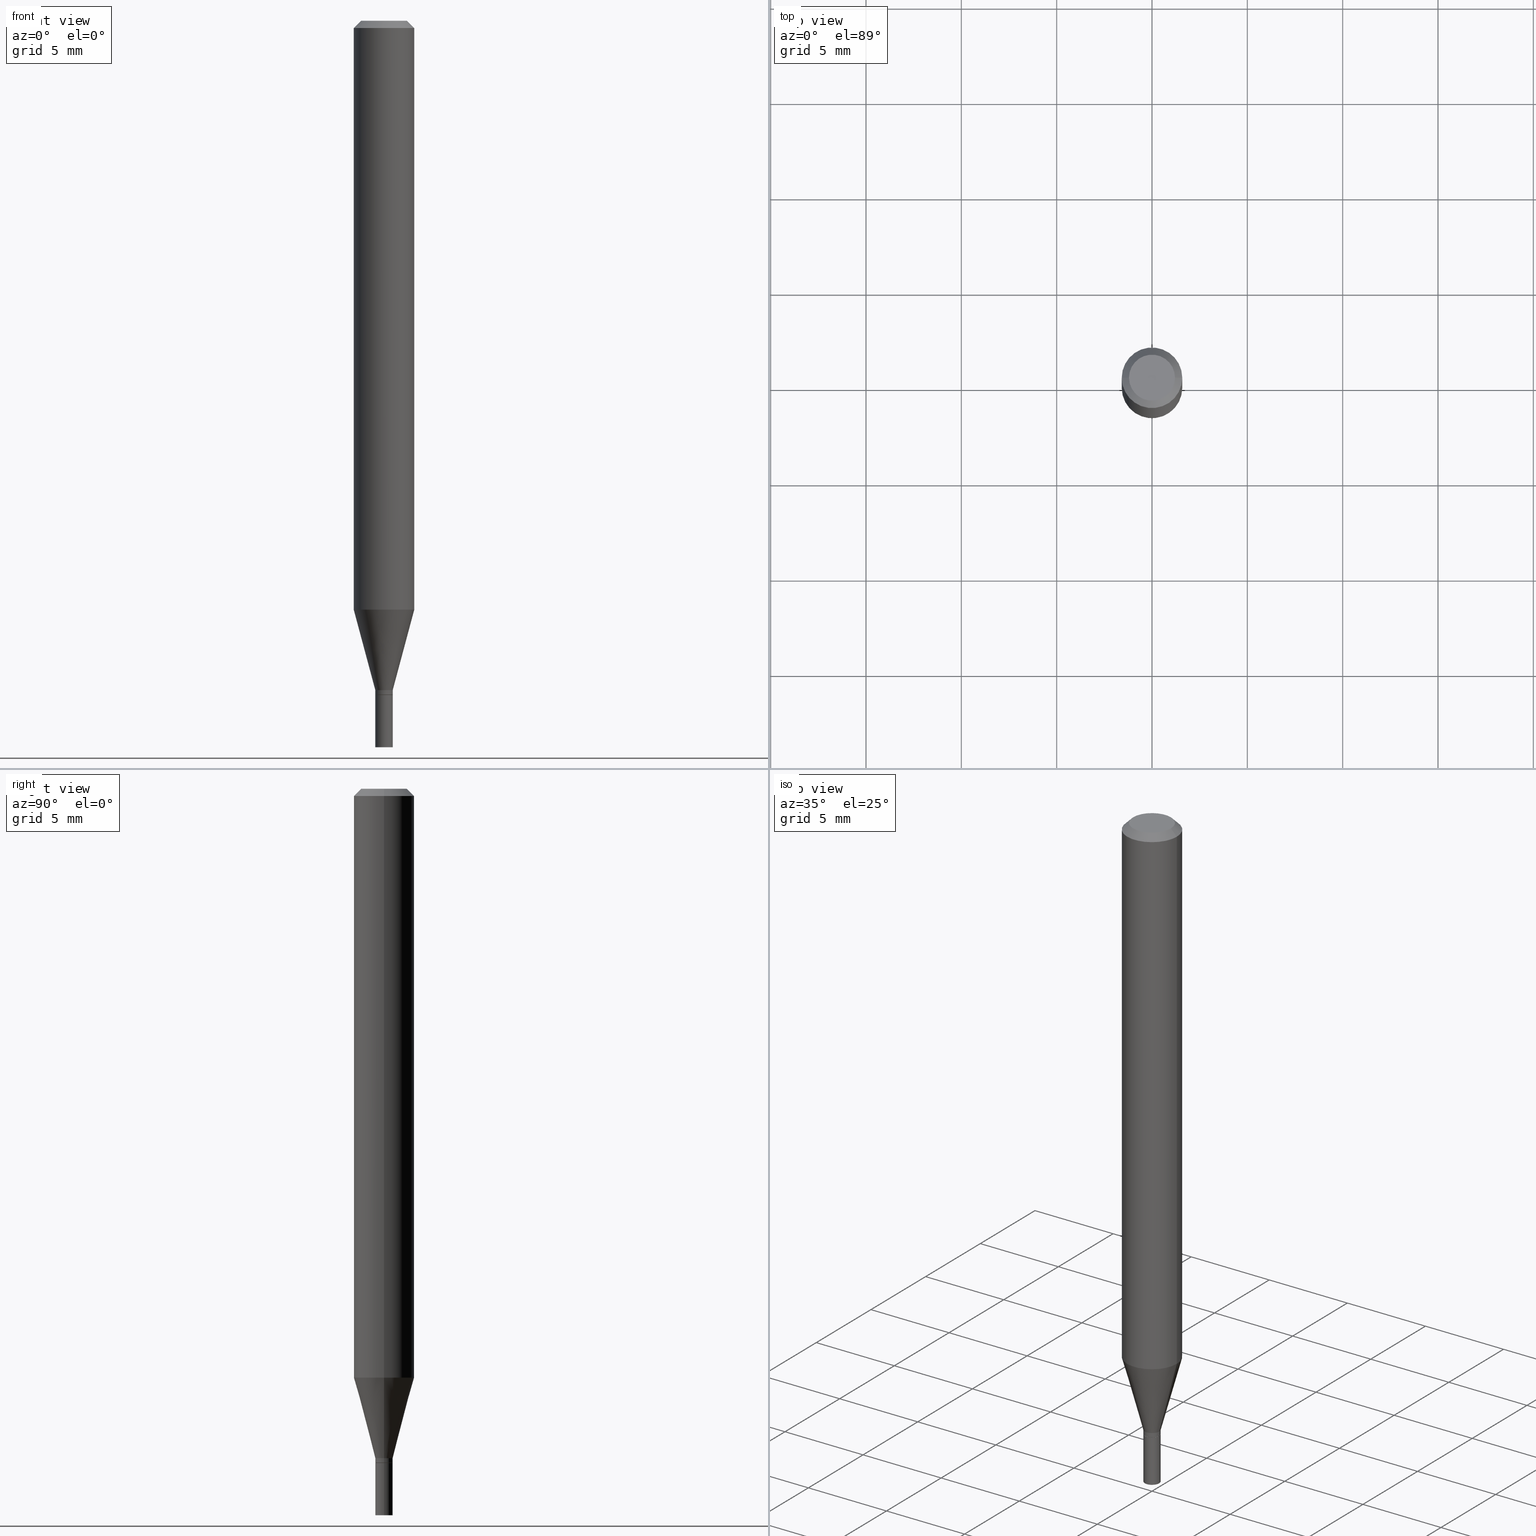
[diagram: canonical four-view strip — front | top / right | iso, engineering-drawing reading convention]
A machine part, canonical four-view strip (front | top / right | iso — engineering-drawing reading convention). The complete STEP part file that produces these views, byte-faithful:
ISO-10303-21;
HEADER;
FILE_DESCRIPTION (( 'STEP AP203' ),
    '1' );
FILE_NAME ('00842.STEP',
    '2024-03-19T22:41:56',
    ( '' ),
    ( '' ),
    'SwSTEP 2.0',
    'SolidWorks 2023',
    '' );
FILE_SCHEMA (( 'CONFIG_CONTROL_DESIGN' ));
ENDSEC;

DATA;
#1 = DIRECTION ( 'NONE',  ( 1.000000000000000000, -6.982962677686267499E-15, 4.852736867747366768E-29 ) ) ;
#2 = CARTESIAN_POINT ( 'NONE',  ( 0.000000000000000000, 0.000000000000000000, 0.000000000000000000 ) ) ;
#3 = EDGE_LOOP ( 'NONE', ( #256, #272, #241, #376 ) ) ;
#4 = CARTESIAN_POINT ( 'NONE',  ( 3.404092578209710223E-29, -4.860142023669658418E-15, -1.392000000000000126 ) ) ;
#5 = DIRECTION ( 'NONE',  ( -2.445468806185136877E-29, 3.491481338843145188E-15, 1.000000000000000000 ) ) ;
#6 = EDGE_CURVE ( 'NONE', #315, #239, #26, .T. ) ;
#7 = CIRCLE ( 'NONE', #267, 0.01749999999999999820 ) ;
#8 = APPROVAL_PERSON_ORGANIZATION ( #300, #354, #121 ) ;
#9 = DIRECTION ( 'NONE',  ( 2.438088387897960049E-29, -3.491481338843145188E-15, -1.000000000000000000 ) ) ;
#10 = ORIENTED_EDGE ( 'NONE', *, *, #293, .T. ) ;
#11 = PERSON_AND_ORGANIZATION ( #441, #372 ) ;
#12 = CALENDAR_DATE ( 2024, 19, 3 ) ;
#13 = ORIENTED_EDGE ( 'NONE', *, *, #99, .F. ) ;
#14 = CALENDAR_DATE ( 2024, 19, 3 ) ;
#15 = DIRECTION ( 'NONE',  ( 1.000000000000000000, -6.982962677686250144E-15, 0.000000000000000000 ) ) ;
#16 = ORIENTED_EDGE ( 'NONE', *, *, #150, .F. ) ;
#17 = EDGE_LOOP ( 'NONE', ( #24, #57, #135, #151 ) ) ;
#18 = CIRCLE ( 'NONE', #343, 0.01799999999999999864 ) ;
#19 = ORIENTED_EDGE ( 'NONE', *, *, #452, .T. ) ;
#20 = CALENDAR_DATE ( 2024, 19, 3 ) ;
#21 = LINE ( 'NONE', #234, #235 ) ;
#22 = EDGE_CURVE ( 'NONE', #134, #307, #421, .T. ) ;
#23 = EDGE_CURVE ( 'NONE', #413, #442, #236, .T. ) ;
#24 = ORIENTED_EDGE ( 'NONE', *, *, #435, .F. ) ;
#25 = DIRECTION ( 'NONE',  ( -2.445468806185136597E-29, 3.491481338843145583E-15, 1.000000000000000000 ) ) ;
#26 = LINE ( 'NONE', #302, #29 ) ;
#27 = ORIENTED_EDGE ( 'NONE', *, *, #46, .F. ) ;
#28 = AXIS2_PLACEMENT_3D ( 'NONE', #317, #173, #433 ) ;
#29 = VECTOR ( 'NONE', #266, 39.37007874015748143 ) ;
#30 = ADVANCED_FACE ( 'NONE', ( #426 ), #94, .T. ) ;
#31 = CYLINDRICAL_SURFACE ( 'NONE', #436, 0.01799999999999991884 ) ;
#32 = DIRECTION ( 'NONE',  ( -2.445468806185136597E-29, 3.491481338843145583E-15, 1.000000000000000000 ) ) ;
#33 = CARTESIAN_POINT ( 'NONE',  ( 1.278896122067429216E-44, -1.825924719719875646E-30, -5.229656247639779395E-16 ) ) ;
#34 = DIRECTION ( 'NONE',  ( 0.7071067811865598962, -7.319954787623298644E-15, -0.7071067811865351382 ) ) ;
#35 = CARTESIAN_POINT ( 'NONE',  ( 0.000000000000000000, 0.000000000000000000, 0.000000000000000000 ) ) ;
#36 = VECTOR ( 'NONE', #34, 39.37007874015748143 ) ;
#37 = PRODUCT_DEFINITION_FORMATION_WITH_SPECIFIED_SOURCE ( 'ANY', '', #208, .NOT_KNOWN. ) ;
#38 = APPLICATION_PROTOCOL_DEFINITION ( 'international standard', 'config_control_design', 1994, #392 ) ;
#39 = FACE_OUTER_BOUND ( 'NONE', #227, .T. ) ;
#40 = EDGE_LOOP ( 'NONE', ( #146, #294 ) ) ;
#41 = AXIS2_PLACEMENT_3D ( 'NONE', #247, #393, #76 ) ;
#42 = LOCAL_TIME ( 18, 41, 56.00000000000000000, #457 ) ;
#43 = CIRCLE ( 'NONE', #110, 0.01799999999999999864 ) ;
#44 = AXIS2_PLACEMENT_3D ( 'NONE', #2, #434, #88 ) ;
#45 = VERTEX_POINT ( 'NONE', #97 ) ;
#46 = EDGE_CURVE ( 'NONE', #120, #45, #167, .T. ) ;
#47 = DIRECTION ( 'NONE',  ( 0.000000000000000000, 0.000000000000000000, 1.000000000000000000 ) ) ;
#48 = DIRECTION ( 'NONE',  ( 1.000000000000000000, -6.982962677686255667E-15, 0.000000000000000000 ) ) ;
#49 = EDGE_CURVE ( 'NONE', #254, #442, #259, .T. ) ;
#50 = DATE_AND_TIME ( #379, #353 ) ;
#51 = CARTESIAN_POINT ( 'NONE',  ( -0.01749999999999999820, -4.733147817737530757E-15, -1.392000000000000126 ) ) ;
#52 = ORIENTED_EDGE ( 'NONE', *, *, #22, .F. ) ;
#53 = CC_DESIGN_PERSON_AND_ORGANIZATION_ASSIGNMENT ( #11, #340, ( #219 ) ) ;
#54 = DIRECTION ( 'NONE',  ( 1.000000000000000000, -6.982962677686279332E-15, 0.000000000000000000 ) ) ;
#55 = DIRECTION ( 'NONE',  ( -2.445468806185136597E-29, 3.491481338843145583E-15, 1.000000000000000000 ) ) ;
#56 = DIRECTION ( 'NONE',  ( 1.000000000000000000, -6.982962677686256455E-15, 0.000000000000000000 ) ) ;
#57 = ORIENTED_EDGE ( 'NONE', *, *, #223, .T. ) ;
#58 = PERSON_AND_ORGANIZATION ( #441, #372 ) ;
#59 =( GEOMETRIC_REPRESENTATION_CONTEXT ( 3 ) GLOBAL_UNCERTAINTY_ASSIGNED_CONTEXT ( ( #65 ) ) GLOBAL_UNIT_ASSIGNED_CONTEXT ( ( #118, #185, #152 ) ) REPRESENTATION_CONTEXT ( 'NONE', 'WORKASPACE' ) );
#60 = ADVANCED_FACE ( 'NONE', ( #277 ), #437, .T. ) ;
#61 = SECURITY_CLASSIFICATION ( '', '', #188 ) ;
#62 = CARTESIAN_POINT ( 'NONE',  ( -0.04749999999999999362, 3.578768372314202124E-16, -5.229656247639803061E-16 ) ) ;
#63 = ADVANCED_FACE ( 'NONE', ( #422 ), #265, .T. ) ;
#64 = DIRECTION ( 'NONE',  ( 1.000000000000000000, -6.982962677686270655E-15, 0.000000000000000000 ) ) ;
#65 = UNCERTAINTY_MEASURE_WITH_UNIT (LENGTH_MEASURE( 1.000000000000000082E-05 ), #118, 'distance_accuracy_value', 'NONE');
#66 = DIRECTION ( 'NONE',  ( -2.445468806185136597E-29, 3.491481338843145583E-15, 1.000000000000000000 ) ) ;
#67 = EDGE_LOOP ( 'NONE', ( #423, #10 ) ) ;
#68 = DIRECTION ( 'NONE',  ( -1.000000000000000000, 6.982962677686265922E-15, -4.876176775795935793E-29 ) ) ;
#69 = FACE_OUTER_BOUND ( 'NONE', #17, .T. ) ;
#70 = CIRCLE ( 'NONE', #333, 0.01799999999999999864 ) ;
#71 = DIRECTION ( 'NONE',  ( -2.445468806185136597E-29, 3.491481338843145583E-15, 1.000000000000000000 ) ) ;
#72 = AXIS2_PLACEMENT_3D ( 'NONE', #444, #47, #335 ) ;
#73 = AXIS2_PLACEMENT_3D ( 'NONE', #309, #128, #271 ) ;
#74 = EDGE_CURVE ( 'NONE', #254, #134, #145, .T. ) ;
#75 = FACE_OUTER_BOUND ( 'NONE', #184, .T. ) ;
#76 = DIRECTION ( 'NONE',  ( 1.000000000000000000, -6.982962677686256455E-15, 0.000000000000000000 ) ) ;
#77 = DIRECTION ( 'NONE',  ( -1.000000000000000000, 6.982962677686265922E-15, -4.876176775795935793E-29 ) ) ;
#78 = LOCAL_TIME ( 18, 41, 56.00000000000000000, #406 ) ;
#79 = EDGE_LOOP ( 'NONE', ( #124, #170, #117, #100 ) ) ;
#80 = LINE ( 'NONE', #154, #195 ) ;
#81 = DESIGN_CONTEXT ( 'detailed design', #275, 'design' ) ;
#82 = EDGE_CURVE ( 'NONE', #315, #113, #43, .T. ) ;
#83 = ORIENTED_EDGE ( 'NONE', *, *, #253, .T. ) ;
#84 = DIRECTION ( 'NONE',  ( 1.000000000000000000, -6.982962677686265922E-15, 4.876176775795935793E-29 ) ) ;
#85 = AXIS2_PLACEMENT_3D ( 'NONE', #4, #257, #84 ) ;
#86 = VECTOR ( 'NONE', #202, 39.37007874015748854 ) ;
#87 = DIRECTION ( 'NONE',  ( -2.445468806185136877E-29, 3.491481338843145188E-15, 1.000000000000000000 ) ) ;
#88 = DIRECTION ( 'NONE',  ( 1.000000000000000000, -6.982962677686266711E-15, 4.876176775795935232E-29 ) ) ;
#89 = ADVANCED_FACE ( 'NONE', ( #286 ), #389, .T. ) ;
#90 = AXIS2_PLACEMENT_3D ( 'NONE', #35, #200, #424 ) ;
#91 = ORIENTED_EDGE ( 'NONE', *, *, #287, .F. ) ;
#92 = VECTOR ( 'NONE', #5, 39.37007874015748143 ) ;
#93 = DIRECTION ( 'NONE',  ( -2.445468806185136597E-29, 3.491481338843145583E-15, 1.000000000000000000 ) ) ;
#94 = CYLINDRICAL_SURFACE ( 'NONE', #405, 0.06250000000000000000 ) ;
#95 = ORIENTED_EDGE ( 'NONE', *, *, #414, .T. ) ;
#96 = DIRECTION ( 'NONE',  ( -1.000000000000000000, 6.982962677686266711E-15, 0.000000000000000000 ) ) ;
#97 = CARTESIAN_POINT ( 'NONE',  ( -0.01799999999999992231, -4.730498590563419556E-15, -1.391500000000000181 ) ) ;
#98 = PERSON_AND_ORGANIZATION ( #441, #372 ) ;
#99 = EDGE_CURVE ( 'NONE', #375, #307, #323, .T. ) ;
#100 = ORIENTED_EDGE ( 'NONE', *, *, #253, .F. ) ;
#101 = LINE ( 'NONE', #198, #453 ) ;
#102 = CARTESIAN_POINT ( 'NONE',  ( 3.668203209277705088E-31, -5.237222008264718399E-17, -0.01499999999999999944 ) ) ;
#103 = CARTESIAN_POINT ( 'NONE',  ( 0.01799999999999999864, -5.362915336463071956E-15, -1.500000000000000222 ) ) ;
#104 = ADVANCED_FACE ( 'NONE', ( #69 ), #319, .T. ) ;
#105 = ORIENTED_EDGE ( 'NONE', *, *, #23, .F. ) ;
#106 = FACE_OUTER_BOUND ( 'NONE', #274, .T. ) ;
#107 = EDGE_CURVE ( 'NONE', #45, #193, #420, .T. ) ;
#108 = AXIS2_PLACEMENT_3D ( 'NONE', #463, #66, #1 ) ;
#109 = CYLINDRICAL_SURFACE ( 'NONE', #90, 0.06250000000000000000 ) ;
#110 = AXIS2_PLACEMENT_3D ( 'NONE', #279, #209, #356 ) ;
#111 = DIRECTION ( 'NONE',  ( 1.000000000000000000, -6.982962677686267499E-15, 4.852736867747366768E-29 ) ) ;
#112 = DIRECTION ( 'NONE',  ( 2.438088387897960049E-29, -3.491481338843145188E-15, -1.000000000000000000 ) ) ;
#113 = VERTEX_POINT ( 'NONE', #225 ) ;
#114 = APPROVAL ( #119, 'UNSPECIFIED' ) ;
#115 = CIRCLE ( 'NONE', #246, 0.01799999999999999864 ) ;
#116 = CLOSED_SHELL ( 'NONE', ( #346, #350, #104, #432 ) ) ;
#117 = ORIENTED_EDGE ( 'NONE', *, *, #452, .F. ) ;
#118 =( CONVERSION_BASED_UNIT ( 'INCH', #224 ) LENGTH_UNIT ( ) NAMED_UNIT ( #396 ) );
#119 = APPROVAL_STATUS ( 'not_yet_approved' ) ;
#120 = VERTEX_POINT ( 'NONE', #51 ) ;
#121 = APPROVAL_ROLE ( '' ) ;
#122 = VECTOR ( 'NONE', #314, 39.37007874015748143 ) ;
#123 = CARTESIAN_POINT ( 'NONE',  ( 0.01799999999999991884, -4.950920538479579759E-15, -1.382000000000000117 ) ) ;
#124 = ORIENTED_EDGE ( 'NONE', *, *, #438, .T. ) ;
#125 = DATE_AND_TIME ( #12, #460 ) ;
#126 = ORIENTED_EDGE ( 'NONE', *, *, #287, .T. ) ;
#127 = VERTEX_POINT ( 'NONE', #326 ) ;
#128 = DIRECTION ( 'NONE',  ( -2.445468806185136597E-29, 3.491481338843145583E-15, 1.000000000000000000 ) ) ;
#129 = ORIENTED_EDGE ( 'NONE', *, *, #136, .T. ) ;
#130 = EDGE_CURVE ( 'NONE', #239, #248, #70, .T. ) ;
#131 = CARTESIAN_POINT ( 'NONE',  ( -0.01799999999999991884, 1.278976924368174568E-16, -8.854083162458790652E-31 ) ) ;
#132 = DIRECTION ( 'NONE',  ( 1.000000000000000000, -6.982962677686250144E-15, 0.000000000000000000 ) ) ;
#133 = DIRECTION ( 'NONE',  ( -2.445468806185136597E-29, 3.491481338843145583E-15, 1.000000000000000000 ) ) ;
#134 = VERTEX_POINT ( 'NONE', #192 ) ;
#135 = ORIENTED_EDGE ( 'NONE', *, *, #6, .T. ) ;
#136 = EDGE_CURVE ( 'NONE', #120, #127, #7, .T. ) ;
#137 = CARTESIAN_POINT ( 'NONE',  ( 3.668203209277705088E-31, -5.237222008264718399E-17, -0.01499999999999999944 ) ) ;
#138 = APPROVAL ( #331, 'UNSPECIFIED' ) ;
#139 = PRODUCT_DEFINITION_SHAPE ( 'NONE', 'NONE',  #219 ) ;
#140 = CARTESIAN_POINT ( 'NONE',  ( 0.01749999999999999820, -4.982343870529167612E-15, -1.392000000000000126 ) ) ;
#141 = CARTESIAN_POINT ( 'NONE',  ( 0.000000000000000000, 0.000000000000000000, 0.000000000000000000 ) ) ;
#142 = ADVANCED_FACE ( 'NONE', ( #304 ), #329, .T. ) ;
#143 = ORIENTED_EDGE ( 'NONE', *, *, #400, .F. ) ;
#144 = CARTESIAN_POINT ( 'NONE',  ( 0.04749999999999999362, -4.035134999187587991E-16, -5.229656247639753758E-16 ) ) ;
#145 = LINE ( 'NONE', #386, #92 ) ;
#146 = ORIENTED_EDGE ( 'NONE', *, *, #438, .F. ) ;
#147 = FACE_OUTER_BOUND ( 'NONE', #365, .T. ) ;
#148 = VECTOR ( 'NONE', #210, 39.37007874015748854 ) ;
#149 = DIRECTION ( 'NONE',  ( -2.445468806185136597E-29, 3.491481338843145583E-15, 1.000000000000000000 ) ) ;
#150 = EDGE_CURVE ( 'NONE', #413, #456, #155, .T. ) ;
#151 = ORIENTED_EDGE ( 'NONE', *, *, #465, .F. ) ;
#152 =( NAMED_UNIT ( * ) SI_UNIT ( $, .STERADIAN. ) SOLID_ANGLE_UNIT ( ) );
#153 = CC_DESIGN_DATE_AND_TIME_ASSIGNMENT ( #374, #159, ( #61 ) ) ;
#154 = CARTESIAN_POINT ( 'NONE',  ( -0.01799999999999999864, 1.278976924368180238E-16, -8.854083162458829188E-31 ) ) ;
#155 = CIRCLE ( 'NONE', #446, 0.01799999999999991884 ) ;
#156 = PERSON_AND_ORGANIZATION_ROLE ( 'creator' ) ;
#157 = ORIENTED_EDGE ( 'NONE', *, *, #130, .F. ) ;
#158 = EDGE_LOOP ( 'NONE', ( #398, #334, #321, #105 ) ) ;
#159 = DATE_TIME_ROLE ( 'classification_date' ) ;
#160 = ADVANCED_FACE ( 'NONE', ( #163 ), #320, .T. ) ;
#161 = CIRCLE ( 'NONE', #222, 0.01799999999999992231 ) ;
#162 = ORIENTED_EDGE ( 'NONE', *, *, #49, .F. ) ;
#163 = FACE_OUTER_BOUND ( 'NONE', #158, .T. ) ;
#164 = CARTESIAN_POINT ( 'NONE',  ( 3.668203209277705088E-31, -5.237222008264718399E-17, -0.01499999999999999944 ) ) ;
#165 = DATE_TIME_ROLE ( 'creation_date' ) ;
#166 = LINE ( 'NONE', #131, #289 ) ;
#167 = LINE ( 'NONE', #229, #197 ) ;
#168 = EDGE_CURVE ( 'NONE', #442, #307, #21, .T. ) ;
#169 = CARTESIAN_POINT ( 'NONE',  ( -0.06250000000000001388, -3.801285834545430586E-15, -1.215923739063185183 ) ) ;
#170 = ORIENTED_EDGE ( 'NONE', *, *, #46, .T. ) ;
#171 = VECTOR ( 'NONE', #176, 39.37007874015748143 ) ;
#172 = FACE_OUTER_BOUND ( 'NONE', #290, .T. ) ;
#173 = DIRECTION ( 'NONE',  ( -2.438088387897960049E-29, 3.491481338843145188E-15, 1.000000000000000000 ) ) ;
#174 = VERTEX_POINT ( 'NONE', #62 ) ;
#175 = CIRCLE ( 'NONE', #108, 0.04749999999999999362 ) ;
#176 = DIRECTION ( 'NONE',  ( -2.445468806185136877E-29, 3.491481338843145188E-15, 1.000000000000000000 ) ) ;
#177 = MECHANICAL_CONTEXT ( 'NONE', #392, 'mechanical' ) ;
#178 = DIRECTION ( 'NONE',  ( 1.000000000000000000, -6.982962677686279332E-15, 0.000000000000000000 ) ) ;
#179 = EDGE_CURVE ( 'NONE', #174, #134, #101, .T. ) ;
#180 = PERSON_AND_ORGANIZATION ( #441, #372 ) ;
#181 = AXIS2_PLACEMENT_3D ( 'NONE', #322, #112, #68 ) ;
#182 = AXIS2_PLACEMENT_3D ( 'NONE', #232, #458, #64 ) ;
#183 = AXIS2_PLACEMENT_3D ( 'NONE', #268, #412, #96 ) ;
#184 = EDGE_LOOP ( 'NONE', ( #411, #324, #157, #443 ) ) ;
#185 =( NAMED_UNIT ( * ) PLANE_ANGLE_UNIT ( ) SI_UNIT ( $, .RADIAN. ) );
#186 = CYLINDRICAL_SURFACE ( 'NONE', #429, 0.01799999999999991884 ) ;
#187 = EDGE_CURVE ( 'NONE', #45, #456, #166, .T. ) ;
#188 = SECURITY_CLASSIFICATION_LEVEL ( 'unclassified' ) ;
#189 = DIRECTION ( 'NONE',  ( -2.445468806185136597E-29, 3.491481338843145583E-15, 1.000000000000000000 ) ) ;
#190 = APPROVAL_PERSON_ORGANIZATION ( #180, #138, #447 ) ;
#191 = ORIENTED_EDGE ( 'NONE', *, *, #223, .F. ) ;
#192 = CARTESIAN_POINT ( 'NONE',  ( -0.06250000000000000000, -1.704784422389007524E-15, -0.01499999999999999944 ) ) ;
#193 = VERTEX_POINT ( 'NONE', #238 ) ;
#194 = EDGE_LOOP ( 'NONE', ( #13, #143, #196, #416 ) ) ;
#195 = VECTOR ( 'NONE', #87, 39.37007874015748143 ) ;
#196 = ORIENTED_EDGE ( 'NONE', *, *, #179, .T. ) ;
#197 = VECTOR ( 'NONE', #349, 39.37007874015748143 ) ;
#198 = CARTESIAN_POINT ( 'NONE',  ( -0.06250000000000000000, 3.840629472727444916E-16, -0.01499999999999999944 ) ) ;
#199 = EDGE_LOOP ( 'NONE', ( #394, #313, #262, #312 ) ) ;
#200 = DIRECTION ( 'NONE',  ( -2.445468806185136597E-29, 3.491481338843145583E-15, 1.000000000000000000 ) ) ;
#201 = ADVANCED_FACE ( 'NONE', ( #276 ), #109, .T. ) ;
#202 = DIRECTION ( 'NONE',  ( 0.2588190451025211836, 1.565188264969622559E-15, 0.9659258262890679791 ) ) ;
#203 = CYLINDRICAL_SURFACE ( 'NONE', #352, 0.01799999999999999864 ) ;
#204 = CIRCLE ( 'NONE', #41, 0.01799999999999991884 ) ;
#205 = AXIS2_PLACEMENT_3D ( 'NONE', #378, #347, #132 ) ;
#206 = CARTESIAN_POINT ( 'NONE',  ( 3.404092578209710223E-29, -4.860142023669658418E-15, -1.392000000000000126 ) ) ;
#207 = AXIS2_PLACEMENT_3D ( 'NONE', #206, #428, #464 ) ;
#208 = PRODUCT ( '00842', '00842', '', ( #177 ) ) ;
#209 = DIRECTION ( 'NONE',  ( -2.445468806185136597E-29, 3.491481338843145583E-15, 1.000000000000000000 ) ) ;
#210 = DIRECTION ( 'NONE',  ( -0.2588190451025211836, 5.211531920934547886E-15, 0.9659258262890679791 ) ) ;
#211 = FACE_OUTER_BOUND ( 'NONE', #40, .T. ) ;
#212 = CARTESIAN_POINT ( 'NONE',  ( 3.379637890147859239E-29, -4.825227210281227557E-15, -1.382000000000000117 ) ) ;
#213 = ORIENTED_EDGE ( 'NONE', *, *, #107, .T. ) ;
#214 = CIRCLE ( 'NONE', #371, 0.06250000000000000000 ) ;
#215 = CARTESIAN_POINT ( 'NONE',  ( 1.256933281983868125E-16, 0.01799999999999513794, -1.392000000000000126 ) ) ;
#216 = DIRECTION ( 'NONE',  ( 1.000000000000000000, -6.982962677686256455E-15, 0.000000000000000000 ) ) ;
#217 = CARTESIAN_POINT ( 'NONE',  ( 0.000000000000000000, 0.000000000000000000, 0.000000000000000000 ) ) ;
#218 = ADVANCED_FACE ( 'NONE', ( #278 ), #380, .T. ) ;
#219 = PRODUCT_DEFINITION ( 'UNKNOWN', '', #37, #81 ) ;
#220 = DIRECTION ( 'NONE',  ( 1.000000000000000000, -6.982962677686250144E-15, 0.000000000000000000 ) ) ;
#221 = DIRECTION ( 'NONE',  ( -2.445468806185136597E-29, 3.491481338843145583E-15, 1.000000000000000000 ) ) ;
#222 = AXIS2_PLACEMENT_3D ( 'NONE', #440, #367, #288 ) ;
#223 = EDGE_CURVE ( 'NONE', #113, #315, #115, .T. ) ;
#224 = LENGTH_MEASURE_WITH_UNIT ( LENGTH_MEASURE( 0.02539999999999999897 ), #399 );
#225 = CARTESIAN_POINT ( 'NONE',  ( -0.01799999999999999864, -4.920784323530369756E-15, -1.500000000000000222 ) ) ;
#226 = MANIFOLD_SOLID_BREP ( 'Body-Move/Copy2[2]', #228 ) ;
#227 = EDGE_LOOP ( 'NONE', ( #366, #342 ) ) ;
#228 = CLOSED_SHELL ( 'NONE', ( #445, #218, #142, #30, #160, #89, #201, #63, #336, #425, #60, #332 ) ) ;
#229 = CARTESIAN_POINT ( 'NONE',  ( -0.01749999999999999820, -4.735797044911641169E-15, -1.392000000000000126 ) ) ;
#230 = ORIENTED_EDGE ( 'NONE', *, *, #168, .T. ) ;
#231 = CC_DESIGN_PERSON_AND_ORGANIZATION_ASSIGNMENT ( #233, #448, ( #37 ) ) ;
#232 = CARTESIAN_POINT ( 'NONE',  ( 2.973503574579014958E-29, -4.245375044395493202E-15, -1.215923739063185183 ) ) ;
#233 = PERSON_AND_ORGANIZATION ( #441, #372 ) ;
#234 = CARTESIAN_POINT ( 'NONE',  ( 0.06250000000000000000, -4.364351673553916694E-16, 3.047610484872459871E-30 ) ) ;
#235 = VECTOR ( 'NONE', #382, 39.37007874015748143 ) ;
#236 = LINE ( 'NONE', #123, #86 ) ;
#237 = APPROVAL_PERSON_ORGANIZATION ( #303, #114, #408 ) ;
#238 = CARTESIAN_POINT ( 'NONE',  ( 0.01799999999999992231, -4.984089611198589115E-15, -1.391500000000000181 ) ) ;
#239 = VERTEX_POINT ( 'NONE', #249 ) ;
#240 = DIRECTION ( 'NONE',  ( -2.445468806185136597E-29, 3.491481338843145583E-15, 1.000000000000000000 ) ) ;
#241 = ORIENTED_EDGE ( 'NONE', *, *, #273, .T. ) ;
#242 = LINE ( 'NONE', #284, #148 ) ;
#243 = CIRCLE ( 'NONE', #305, 0.01749999999999999820 ) ;
#244 = AXIS2_PLACEMENT_3D ( 'NONE', #102, #461, #327 ) ;
#245 = LINE ( 'NONE', #466, #171 ) ;
#246 = AXIS2_PLACEMENT_3D ( 'NONE', #348, #25, #355 ) ;
#247 = CARTESIAN_POINT ( 'NONE',  ( 3.379637890147859239E-29, -4.825227210281227557E-15, -1.382000000000000117 ) ) ;
#248 = VERTEX_POINT ( 'NONE', #318 ) ;
#249 = CARTESIAN_POINT ( 'NONE',  ( 0.01799999999999999864, -4.985835351868011408E-15, -1.392000000000000126 ) ) ;
#250 = CC_DESIGN_SECURITY_CLASSIFICATION ( #61, ( #37 ) ) ;
#251 = CARTESIAN_POINT ( 'NONE',  ( 3.404092578209710223E-29, -4.860142023669658418E-15, -1.392000000000000126 ) ) ;
#252 = CARTESIAN_POINT ( 'NONE',  ( 3.404092578209710223E-29, -4.860142023669658418E-15, -1.392000000000000126 ) ) ;
#253 = EDGE_CURVE ( 'NONE', #127, #193, #280, .T. ) ;
#254 = VERTEX_POINT ( 'NONE', #169 ) ;
#255 = PERSON_AND_ORGANIZATION_ROLE ( 'design_owner' ) ;
#256 = ORIENTED_EDGE ( 'NONE', *, *, #293, .F. ) ;
#257 = DIRECTION ( 'NONE',  ( -2.438088387897960049E-29, 3.491481338843145188E-15, 1.000000000000000000 ) ) ;
#258 = APPLICATION_PROTOCOL_DEFINITION ( 'international standard', 'config_control_design', 1994, #275 ) ;
#259 = CIRCLE ( 'NONE', #182, 0.06250000000000000000 ) ;
#260 = DATE_AND_TIME ( #14, #42 ) ;
#261 = SHAPE_DEFINITION_REPRESENTATION ( #139, #298 ) ;
#262 = ORIENTED_EDGE ( 'NONE', *, *, #273, .F. ) ;
#263 = APPROVAL_DATE_TIME ( #415, #354 ) ;
#264 = CIRCLE ( 'NONE', #388, 0.06250000000000000000 ) ;
#265 = CONICAL_SURFACE ( 'NONE', #244, 0.06250000000000000000, 0.7853981633974658205 ) ;
#266 = DIRECTION ( 'NONE',  ( -2.445468806185136877E-29, 3.491481338843145188E-15, 1.000000000000000000 ) ) ;
#267 = AXIS2_PLACEMENT_3D ( 'NONE', #341, #455, #15 ) ;
#268 = CARTESIAN_POINT ( 'NONE',  ( 3.668203209277705088E-31, -5.237222008264718399E-17, -0.01499999999999999944 ) ) ;
#269 = CARTESIAN_POINT ( 'NONE',  ( 0.000000000000000000, 0.000000000000000000, 0.000000000000000000 ) ) ;
#270 = APPROVAL_STATUS ( 'not_yet_approved' ) ;
#271 = DIRECTION ( 'NONE',  ( 1.000000000000000000, -6.982962677686256455E-15, 0.000000000000000000 ) ) ;
#272 = ORIENTED_EDGE ( 'NONE', *, *, #99, .T. ) ;
#273 = EDGE_CURVE ( 'NONE', #307, #134, #214, .T. ) ;
#274 = EDGE_LOOP ( 'NONE', ( #328, #191 ) ) ;
#275 = APPLICATION_CONTEXT ( 'configuration controlled 3d designs of mechanical parts and assemblies' ) ;
#276 = FACE_OUTER_BOUND ( 'NONE', #310, .T. ) ;
#277 = FACE_OUTER_BOUND ( 'NONE', #383, .T. ) ;
#278 = FACE_OUTER_BOUND ( 'NONE', #79, .T. ) ;
#279 = CARTESIAN_POINT ( 'NONE',  ( 3.668203209277704895E-29, -5.237222008264718177E-15, -1.500000000000000222 ) ) ;
#280 = LINE ( 'NONE', #140, #122 ) ;
#281 = CIRCLE ( 'NONE', #409, 0.04749999999999999362 ) ;
#282 = CC_DESIGN_APPROVAL ( #138, ( #219 ) ) ;
#283 = AXIS2_PLACEMENT_3D ( 'NONE', #164, #55, #454 ) ;
#284 = CARTESIAN_POINT ( 'NONE',  ( -0.01799999999999991884, -4.697329517844410199E-15, -1.382000000000000117 ) ) ;
#285 = CARTESIAN_POINT ( 'NONE',  ( 0.01799999999999991884, -4.950920538479579759E-15, -1.382000000000000117 ) ) ;
#286 = FACE_OUTER_BOUND ( 'NONE', #407, .T. ) ;
#287 = EDGE_CURVE ( 'NONE', #193, #413, #245, .T. ) ;
#288 = DIRECTION ( 'NONE',  ( 1.000000000000000000, -6.982962677686255667E-15, 0.000000000000000000 ) ) ;
#289 = VECTOR ( 'NONE', #419, 39.37007874015748143 ) ;
#290 = EDGE_LOOP ( 'NONE', ( #306, #213, #126, #449 ) ) ;
#291 = PERSON_AND_ORGANIZATION ( #441, #372 ) ;
#292 = CARTESIAN_POINT ( 'NONE',  ( 0.06250000000000001388, -4.681810211750884871E-15, -1.215923739063185183 ) ) ;
#293 = EDGE_CURVE ( 'NONE', #375, #174, #175, .T. ) ;
#294 = ORIENTED_EDGE ( 'NONE', *, *, #136, .F. ) ;
#295 = DIRECTION ( 'NONE',  ( 1.000000000000000000, -6.982962677686270655E-15, 0.000000000000000000 ) ) ;
#296 = AXIS2_PLACEMENT_3D ( 'NONE', #299, #364, #48 ) ;
#297 = LOCAL_TIME ( 18, 41, 56.00000000000000000, #338 ) ;
#298 = ADVANCED_BREP_SHAPE_REPRESENTATION ( '00842', ( #390, #226, #72 ), #59 ) ;
#299 = CARTESIAN_POINT ( 'NONE',  ( 3.402869843806617422E-29, -4.858396283000238492E-15, -1.391500000000000181 ) ) ;
#300 = PERSON_AND_ORGANIZATION ( #441, #372 ) ;
#301 = APPROVAL_DATE_TIME ( #125, #138 ) ;
#302 = CARTESIAN_POINT ( 'NONE',  ( 0.01799999999999999864, -1.256933281983527929E-16, 8.777118196432682816E-31 ) ) ;
#303 = PERSON_AND_ORGANIZATION ( #441, #372 ) ;
#304 = FACE_OUTER_BOUND ( 'NONE', #3, .T. ) ;
#305 = AXIS2_PLACEMENT_3D ( 'NONE', #402, #149, #220 ) ;
#306 = ORIENTED_EDGE ( 'NONE', *, *, #187, .F. ) ;
#307 = VERTEX_POINT ( 'NONE', #387 ) ;
#308 = AXIS2_PLACEMENT_3D ( 'NONE', #212, #32, #216 ) ;
#309 = CARTESIAN_POINT ( 'NONE',  ( 3.379637890147859239E-29, -4.825227210281227557E-15, -1.382000000000000117 ) ) ;
#310 = EDGE_LOOP ( 'NONE', ( #339, #417, #230, #52 ) ) ;
#311 = PERSON_AND_ORGANIZATION_ROLE ( 'classification_officer' ) ;
#312 = ORIENTED_EDGE ( 'NONE', *, *, #168, .F. ) ;
#313 = ORIENTED_EDGE ( 'NONE', *, *, #74, .T. ) ;
#314 = DIRECTION ( 'NONE',  ( 0.7071067811865642261, -2.468850131082431399E-15, 0.7071067811865309194 ) ) ;
#315 = VERTEX_POINT ( 'NONE', #103 ) ;
#316 = DIRECTION ( 'NONE',  ( 1.000000000000000000, -6.982962677686265922E-15, 4.876176775795935232E-29 ) ) ;
#317 = CARTESIAN_POINT ( 'NONE',  ( 3.584916967085606921E-29, -5.356492647442320375E-15, -1.500000000000000222 ) ) ;
#318 = CARTESIAN_POINT ( 'NONE',  ( -0.01799999999999999864, -4.920784323530369756E-15, -1.392000000000000126 ) ) ;
#319 = CYLINDRICAL_SURFACE ( 'NONE', #44, 0.01799999999999999864 ) ;
#320 = CONICAL_SURFACE ( 'NONE', #73, 0.01799999999999991884, 0.2617993877991499074 ) ;
#321 = ORIENTED_EDGE ( 'NONE', *, *, #430, .F. ) ;
#322 = CARTESIAN_POINT ( 'NONE',  ( 3.316907271900976096E-16, 0.04749999999999999362, -4.273281759770383169E-16 ) ) ;
#323 = LINE ( 'NONE', #362, #36 ) ;
#324 = ORIENTED_EDGE ( 'NONE', *, *, #435, .T. ) ;
#325 = CARTESIAN_POINT ( 'NONE',  ( 2.973503574579014958E-29, -4.245375044395493202E-15, -1.215923739063185183 ) ) ;
#326 = CARTESIAN_POINT ( 'NONE',  ( 0.01749999999999999820, -4.982343870529167612E-15, -1.392000000000000126 ) ) ;
#327 = DIRECTION ( 'NONE',  ( -1.000000000000000000, 6.982962677686266711E-15, 0.000000000000000000 ) ) ;
#328 = ORIENTED_EDGE ( 'NONE', *, *, #82, .F. ) ;
#329 = CONICAL_SURFACE ( 'NONE', #183, 0.06250000000000000000, 0.7853981633974658205 ) ;
#330 = ORIENTED_EDGE ( 'NONE', *, *, #23, .T. ) ;
#331 = APPROVAL_STATUS ( 'not_yet_approved' ) ;
#332 = ADVANCED_FACE ( 'NONE', ( #172 ), #31, .T. ) ;
#333 = AXIS2_PLACEMENT_3D ( 'NONE', #252, #93, #54 ) ;
#334 = ORIENTED_EDGE ( 'NONE', *, *, #370, .T. ) ;
#335 = DIRECTION ( 'NONE',  ( 1.000000000000000000, 0.000000000000000000, 0.000000000000000000 ) ) ;
#336 = ADVANCED_FACE ( 'NONE', ( #391 ), #357, .F. ) ;
#337 = APPROVAL_DATE_TIME ( #50, #114 ) ;
#338 = COORDINATED_UNIVERSAL_TIME_OFFSET ( 5, 0, .BEHIND. ) ;
#339 = ORIENTED_EDGE ( 'NONE', *, *, #74, .F. ) ;
#340 = PERSON_AND_ORGANIZATION_ROLE ( 'creator' ) ;
#341 = CARTESIAN_POINT ( 'NONE',  ( 3.404092578209710223E-29, -4.860142023669658418E-15, -1.392000000000000126 ) ) ;
#342 = ORIENTED_EDGE ( 'NONE', *, *, #465, .T. ) ;
#343 = AXIS2_PLACEMENT_3D ( 'NONE', #251, #363, #178 ) ;
#344 = ORIENTED_EDGE ( 'NONE', *, *, #370, .F. ) ;
#345 = DIRECTION ( 'NONE',  ( -0.7071067811865598962, 2.468850131082386434E-15, -0.7071067811865351382 ) ) ;
#346 = ADVANCED_FACE ( 'NONE', ( #75 ), #203, .T. ) ;
#347 = DIRECTION ( 'NONE',  ( -2.445468806185136597E-29, 3.491481338843145583E-15, 1.000000000000000000 ) ) ;
#348 = CARTESIAN_POINT ( 'NONE',  ( 3.668203209277704895E-29, -5.237222008264718177E-15, -1.500000000000000222 ) ) ;
#349 = DIRECTION ( 'NONE',  ( -0.7071067811865642261, 7.493145998870414114E-15, 0.7071067811865309194 ) ) ;
#350 = ADVANCED_FACE ( 'NONE', ( #106 ), #351, .F. ) ;
#351 = PLANE ( 'NONE',  #28 ) ;
#352 = AXIS2_PLACEMENT_3D ( 'NONE', #141, #71, #427 ) ;
#353 = LOCAL_TIME ( 18, 41, 56.00000000000000000, #450 ) ;
#354 = APPROVAL ( #270, 'UNSPECIFIED' ) ;
#355 = DIRECTION ( 'NONE',  ( 1.000000000000000000, -6.982962677686279332E-15, 0.000000000000000000 ) ) ;
#356 = DIRECTION ( 'NONE',  ( 1.000000000000000000, -6.982962677686279332E-15, 0.000000000000000000 ) ) ;
#357 = PLANE ( 'NONE',  #181 ) ;
#358 = PLANE ( 'NONE',  #85 ) ;
#359 = CC_DESIGN_APPROVAL ( #114, ( #61 ) ) ;
#360 = ORIENTED_EDGE ( 'NONE', *, *, #107, .F. ) ;
#361 = CARTESIAN_POINT ( 'NONE',  ( -0.01799999999999991884, -4.249307676194920787E-15, -1.382000000000000117 ) ) ;
#362 = CARTESIAN_POINT ( 'NONE',  ( 0.06250000000000000000, -4.811533449433679005E-16, -0.01499999999999999944 ) ) ;
#363 = DIRECTION ( 'NONE',  ( -2.445468806185136597E-29, 3.491481338843145583E-15, 1.000000000000000000 ) ) ;
#364 = DIRECTION ( 'NONE',  ( -2.445468806185136597E-29, 3.491481338843145583E-15, 1.000000000000000000 ) ) ;
#365 = EDGE_LOOP ( 'NONE', ( #19, #373, #16, #91 ) ) ;
#366 = ORIENTED_EDGE ( 'NONE', *, *, #130, .T. ) ;
#367 = DIRECTION ( 'NONE',  ( -2.445468806185136597E-29, 3.491481338843145583E-15, 1.000000000000000000 ) ) ;
#368 = DIRECTION ( 'NONE',  ( 1.000000000000000000, -6.982962677686265922E-15, 4.876176775795935232E-29 ) ) ;
#369 = CALENDAR_DATE ( 2024, 19, 3 ) ;
#370 = EDGE_CURVE ( 'NONE', #456, #254, #242, .T. ) ;
#371 = AXIS2_PLACEMENT_3D ( 'NONE', #137, #133, #459 ) ;
#372 = ORGANIZATION ( 'UNSPECIFIED', 'UNSPECIFIED', '' ) ;
#373 = ORIENTED_EDGE ( 'NONE', *, *, #187, .T. ) ;
#374 = DATE_AND_TIME ( #20, #78 ) ;
#375 = VERTEX_POINT ( 'NONE', #144 ) ;
#376 = ORIENTED_EDGE ( 'NONE', *, *, #179, .F. ) ;
#377 = CARTESIAN_POINT ( 'NONE',  ( 3.379637890147859239E-29, -4.825227210281227557E-15, -1.382000000000000117 ) ) ;
#378 = CARTESIAN_POINT ( 'NONE',  ( 3.404092578209710223E-29, -4.860142023669658418E-15, -1.392000000000000126 ) ) ;
#379 = CALENDAR_DATE ( 2024, 19, 3 ) ;
#380 = CONICAL_SURFACE ( 'NONE', #207, 0.01749999999999999820, 0.7853981633974718157 ) ;
#381 = DIRECTION ( 'NONE',  ( 1.000000000000000000, -6.982962677686266711E-15, 4.876176775795935793E-29 ) ) ;
#382 = DIRECTION ( 'NONE',  ( -2.445468806185136877E-29, 3.491481338843145188E-15, 1.000000000000000000 ) ) ;
#383 = EDGE_LOOP ( 'NONE', ( #27, #129, #83, #360 ) ) ;
#384 = CARTESIAN_POINT ( 'NONE',  ( 0.000000000000000000, 0.000000000000000000, 0.000000000000000000 ) ) ;
#385 = CC_DESIGN_PERSON_AND_ORGANIZATION_ASSIGNMENT ( #291, #255, ( #208 ) ) ;
#386 = CARTESIAN_POINT ( 'NONE',  ( -0.06250000000000000000, 4.440892098500626162E-16, -3.074334431409316114E-30 ) ) ;
#387 = CARTESIAN_POINT ( 'NONE',  ( 0.06250000000000000000, -4.888073874380388472E-16, -0.01499999999999999944 ) ) ;
#388 = AXIS2_PLACEMENT_3D ( 'NONE', #325, #404, #295 ) ;
#389 = CONICAL_SURFACE ( 'NONE', #308, 0.01799999999999991884, 0.2617993877991499074 ) ;
#390 = MANIFOLD_SOLID_BREP ( 'Body-Move/Copy2[1]', #116 ) ;
#391 = FACE_OUTER_BOUND ( 'NONE', #67, .T. ) ;
#392 = APPLICATION_CONTEXT ( 'configuration controlled 3d designs of mechanical parts and assemblies' ) ;
#393 = DIRECTION ( 'NONE',  ( -2.445468806185136597E-29, 3.491481338843145583E-15, 1.000000000000000000 ) ) ;
#394 = ORIENTED_EDGE ( 'NONE', *, *, #430, .T. ) ;
#395 = COORDINATED_UNIVERSAL_TIME_OFFSET ( 5, 0, .BEHIND. ) ;
#396 = DIMENSIONAL_EXPONENTS ( 1.000000000000000000, 0.000000000000000000, 0.000000000000000000, 0.000000000000000000, 0.000000000000000000, 0.000000000000000000, 0.000000000000000000 ) ;
#397 = PLANE ( 'NONE',  #451 ) ;
#398 = ORIENTED_EDGE ( 'NONE', *, *, #150, .T. ) ;
#399 =( LENGTH_UNIT ( ) NAMED_UNIT ( * ) SI_UNIT ( $, .METRE. ) );
#400 = EDGE_CURVE ( 'NONE', #174, #375, #281, .T. ) ;
#401 = CC_DESIGN_PERSON_AND_ORGANIZATION_ASSIGNMENT ( #58, #156, ( #37 ) ) ;
#402 = CARTESIAN_POINT ( 'NONE',  ( 3.404092578209710223E-29, -4.860142023669658418E-15, -1.392000000000000126 ) ) ;
#403 = CC_DESIGN_APPROVAL ( #354, ( #37 ) ) ;
#404 = DIRECTION ( 'NONE',  ( -2.445468806185136597E-29, 3.491481338843145583E-15, 1.000000000000000000 ) ) ;
#405 = AXIS2_PLACEMENT_3D ( 'NONE', #269, #410, #381 ) ;
#406 = COORDINATED_UNIVERSAL_TIME_OFFSET ( 5, 0, .BEHIND. ) ;
#407 = EDGE_LOOP ( 'NONE', ( #344, #95, #330, #162 ) ) ;
#408 = APPROVAL_ROLE ( '' ) ;
#409 = AXIS2_PLACEMENT_3D ( 'NONE', #33, #431, #111 ) ;
#410 = DIRECTION ( 'NONE',  ( -2.445468806185136597E-29, 3.491481338843145583E-15, 1.000000000000000000 ) ) ;
#411 = ORIENTED_EDGE ( 'NONE', *, *, #82, .T. ) ;
#412 = DIRECTION ( 'NONE',  ( 2.445468806185136597E-29, -3.491481338843145583E-15, -1.000000000000000000 ) ) ;
#413 = VERTEX_POINT ( 'NONE', #285 ) ;
#414 = EDGE_CURVE ( 'NONE', #456, #413, #204, .T. ) ;
#415 = DATE_AND_TIME ( #369, #297 ) ;
#416 = ORIENTED_EDGE ( 'NONE', *, *, #22, .T. ) ;
#417 = ORIENTED_EDGE ( 'NONE', *, *, #49, .T. ) ;
#418 = CC_DESIGN_PERSON_AND_ORGANIZATION_ASSIGNMENT ( #98, #311, ( #61 ) ) ;
#419 = DIRECTION ( 'NONE',  ( -2.445468806185136877E-29, 3.491481338843145188E-15, 1.000000000000000000 ) ) ;
#420 = CIRCLE ( 'NONE', #296, 0.01799999999999992231 ) ;
#421 = CIRCLE ( 'NONE', #283, 0.06250000000000000000 ) ;
#422 = FACE_OUTER_BOUND ( 'NONE', #194, .T. ) ;
#423 = ORIENTED_EDGE ( 'NONE', *, *, #400, .T. ) ;
#424 = DIRECTION ( 'NONE',  ( 1.000000000000000000, -6.982962677686266711E-15, 4.876176775795935793E-29 ) ) ;
#425 = ADVANCED_FACE ( 'NONE', ( #211 ), #358, .F. ) ;
#426 = FACE_OUTER_BOUND ( 'NONE', #199, .T. ) ;
#427 = DIRECTION ( 'NONE',  ( 1.000000000000000000, -6.982962677686266711E-15, 4.876176775795935232E-29 ) ) ;
#428 = DIRECTION ( 'NONE',  ( -2.445468806185136597E-29, 3.491481338843145583E-15, 1.000000000000000000 ) ) ;
#429 = AXIS2_PLACEMENT_3D ( 'NONE', #217, #221, #368 ) ;
#430 = EDGE_CURVE ( 'NONE', #442, #254, #264, .T. ) ;
#431 = DIRECTION ( 'NONE',  ( -2.445468806185136597E-29, 3.491481338843145583E-15, 1.000000000000000000 ) ) ;
#432 = ADVANCED_FACE ( 'NONE', ( #39 ), #397, .F. ) ;
#433 = DIRECTION ( 'NONE',  ( 1.000000000000000000, -6.982962677686265922E-15, 4.876176775795935793E-29 ) ) ;
#434 = DIRECTION ( 'NONE',  ( -2.445468806185136597E-29, 3.491481338843145583E-15, 1.000000000000000000 ) ) ;
#435 = EDGE_CURVE ( 'NONE', #113, #248, #80, .T. ) ;
#436 = AXIS2_PLACEMENT_3D ( 'NONE', #384, #240, #316 ) ;
#437 = CONICAL_SURFACE ( 'NONE', #205, 0.01749999999999999820, 0.7853981633974718157 ) ;
#438 = EDGE_CURVE ( 'NONE', #127, #120, #243, .T. ) ;
#439 = CC_DESIGN_DATE_AND_TIME_ASSIGNMENT ( #260, #165, ( #219 ) ) ;
#440 = CARTESIAN_POINT ( 'NONE',  ( 3.402869843806617422E-29, -4.858396283000238492E-15, -1.391500000000000181 ) ) ;
#441 = PERSON ( 'UNSPECIFIED', 'UNSPECIFIED', 'UNSPECIFIED', ('UNSPECIFIED'), ('UNSPECIFIED'), ('UNSPECIFIED') ) ;
#442 = VERTEX_POINT ( 'NONE', #292 ) ;
#443 = ORIENTED_EDGE ( 'NONE', *, *, #6, .F. ) ;
#444 = CARTESIAN_POINT ( 'NONE',  ( 0.000000000000000000, 0.000000000000000000, 0.000000000000000000 ) ) ;
#445 = ADVANCED_FACE ( 'NONE', ( #147 ), #186, .T. ) ;
#446 = AXIS2_PLACEMENT_3D ( 'NONE', #377, #189, #56 ) ;
#447 = APPROVAL_ROLE ( '' ) ;
#448 = PERSON_AND_ORGANIZATION_ROLE ( 'design_supplier' ) ;
#449 = ORIENTED_EDGE ( 'NONE', *, *, #414, .F. ) ;
#450 = COORDINATED_UNIVERSAL_TIME_OFFSET ( 5, 0, .BEHIND. ) ;
#451 = AXIS2_PLACEMENT_3D ( 'NONE', #215, #9, #77 ) ;
#452 = EDGE_CURVE ( 'NONE', #193, #45, #161, .T. ) ;
#453 = VECTOR ( 'NONE', #345, 39.37007874015748143 ) ;
#454 = DIRECTION ( 'NONE',  ( 1.000000000000000000, -6.982962677686266711E-15, 0.000000000000000000 ) ) ;
#455 = DIRECTION ( 'NONE',  ( -2.445468806185136597E-29, 3.491481338843145583E-15, 1.000000000000000000 ) ) ;
#456 = VERTEX_POINT ( 'NONE', #361 ) ;
#457 = COORDINATED_UNIVERSAL_TIME_OFFSET ( 5, 0, .BEHIND. ) ;
#458 = DIRECTION ( 'NONE',  ( -2.445468806185136597E-29, 3.491481338843145583E-15, 1.000000000000000000 ) ) ;
#459 = DIRECTION ( 'NONE',  ( 1.000000000000000000, -6.982962677686266711E-15, 0.000000000000000000 ) ) ;
#460 = LOCAL_TIME ( 18, 41, 56.00000000000000000, #395 ) ;
#461 = DIRECTION ( 'NONE',  ( 2.445468806185136597E-29, -3.491481338843145583E-15, -1.000000000000000000 ) ) ;
#462 = PRODUCT_RELATED_PRODUCT_CATEGORY ( 'detail', '', ( #208 ) ) ;
#463 = CARTESIAN_POINT ( 'NONE',  ( 1.278896122067429216E-44, -1.825924719719875646E-30, -5.229656247639779395E-16 ) ) ;
#464 = DIRECTION ( 'NONE',  ( 1.000000000000000000, -6.982962677686250144E-15, 0.000000000000000000 ) ) ;
#465 = EDGE_CURVE ( 'NONE', #248, #239, #18, .T. ) ;
#466 = CARTESIAN_POINT ( 'NONE',  ( 0.01799999999999991884, -1.256933281983522259E-16, 8.777118196432644280E-31 ) ) ;
ENDSEC;
END-ISO-10303-21;
